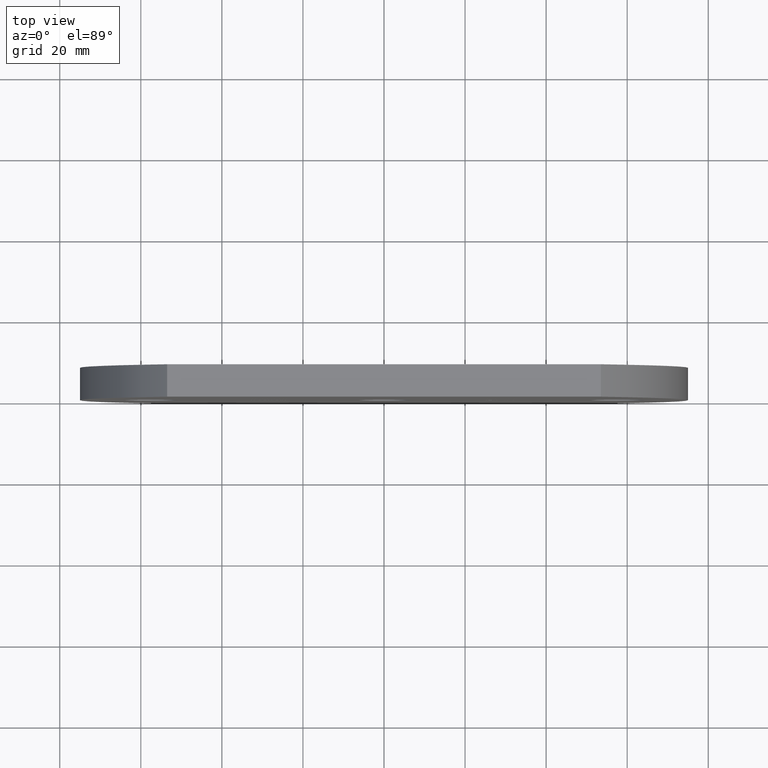
[diagram: clean part render]
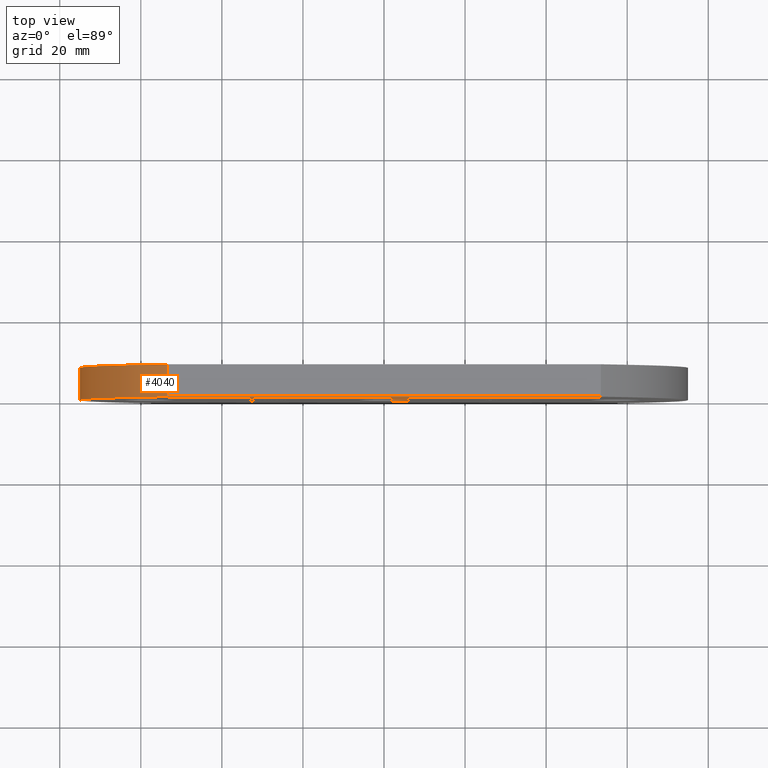
[diagram: same view with one face highlighted and labeled with its STEP entity id]
A machine part, top view. The second image highlights one B-rep face of the part: STEP entity #4040.
In plain terms, the highlighted cylindrical surface (partial cylindrical patch) has radius 68.8895 mm, axis along (-0, -1, -0).
Its self-contained STEP definition (entity closure, byte-faithful):
#381 = DIRECTION ( 'NONE',  ( 0.0000000000000000000, 1.000000000000000000, 0.0000000000000000000 ) ) ;
#814 = ORIENTED_EDGE ( 'NONE', *, *, #9105, .F. ) ;
#830 = AXIS2_PLACEMENT_3D ( 'NONE', #6468, #4645, #7377 ) ;
#1127 = CYLINDRICAL_SURFACE ( 'NONE', #9150, 68.88953488372095500 ) ;
#1288 = DIRECTION ( 'NONE',  ( -0.0000000000000000000, -1.000000000000000000, -0.0000000000000000000 ) ) ;
#1587 = CARTESIAN_POINT ( 'NONE',  ( -53.50000000000003600, 0.0000000000000000000, 49.99999999999998600 ) ) ;
#1641 = ORIENTED_EDGE ( 'NONE', *, *, #7161, .F. ) ;
#1955 = CARTESIAN_POINT ( 'NONE',  ( -53.49999999999998600, 0.0000000000000000000, -50.00000000000003600 ) ) ;
#2040 = CARTESIAN_POINT ( 'NONE',  ( -53.50000000000003600, 8.000000000000000000, 49.99999999999998600 ) ) ;
#3194 = VERTEX_POINT ( 'NONE', #1955 ) ;
#3272 = CARTESIAN_POINT ( 'NONE',  ( -53.49999999999998600, 8.000000000000000000, -50.00000000000003600 ) ) ;
#3611 = EDGE_CURVE ( 'NONE', #3194, #4503, #6650, .T. ) ;
#4040 = ADVANCED_FACE ( 'NONE', ( #4784 ), #1127, .T. ) ;
#4403 = VECTOR ( 'NONE', #1288, 1000.000000000000000 ) ;
#4503 = VERTEX_POINT ( 'NONE', #1587 ) ;
#4559 = VECTOR ( 'NONE', #5674, 1000.000000000000000 ) ;
#4645 = DIRECTION ( 'NONE',  ( 0.0000000000000000000, 1.000000000000000000, 0.0000000000000000000 ) ) ;
#4784 = FACE_OUTER_BOUND ( 'NONE', #10139, .T. ) ;
#5350 = LINE ( 'NONE', #6629, #4559 ) ;
#5674 = DIRECTION ( 'NONE',  ( -0.0000000000000000000, -1.000000000000000000, -0.0000000000000000000 ) ) ;
#5885 = ORIENTED_EDGE ( 'NONE', *, *, #7666, .T. ) ;
#6192 = VERTEX_POINT ( 'NONE', #3272 ) ;
#6331 = CARTESIAN_POINT ( 'NONE',  ( -6.110465116279051800, 8.000000000000000000, 0.0000000000000000000 ) ) ;
#6374 = CARTESIAN_POINT ( 'NONE',  ( -6.110465116279051800, 8.000000000000000000, 0.0000000000000000000 ) ) ;
#6468 = CARTESIAN_POINT ( 'NONE',  ( -6.110465116279051800, 0.0000000000000000000, 0.0000000000000000000 ) ) ;
#6629 = CARTESIAN_POINT ( 'NONE',  ( -53.49999999999998600, 8.000000000000000000, -50.00000000000003600 ) ) ;
#6650 = CIRCLE ( 'NONE', #830, 68.88953488372095500 ) ;
#6854 = ORIENTED_EDGE ( 'NONE', *, *, #3611, .T. ) ;
#6953 = LINE ( 'NONE', #2040, #4403 ) ;
#7161 = EDGE_CURVE ( 'NONE', #6192, #9162, #7354, .T. ) ;
#7354 = CIRCLE ( 'NONE', #9020, 68.88953488372095500 ) ;
#7377 = DIRECTION ( 'NONE',  ( 0.0000000000000000000, 0.0000000000000000000, 1.000000000000000000 ) ) ;
#7396 = CARTESIAN_POINT ( 'NONE',  ( -53.50000000000003600, 8.000000000000000000, 49.99999999999998600 ) ) ;
#7666 = EDGE_CURVE ( 'NONE', #6192, #3194, #5350, .T. ) ;
#8528 = DIRECTION ( 'NONE',  ( 0.0000000000000000000, 0.0000000000000000000, -1.000000000000000000 ) ) ;
#9020 = AXIS2_PLACEMENT_3D ( 'NONE', #6331, #381, #9866 ) ;
#9105 = EDGE_CURVE ( 'NONE', #9162, #4503, #6953, .T. ) ;
#9150 = AXIS2_PLACEMENT_3D ( 'NONE', #6374, #10717, #8528 ) ;
#9162 = VERTEX_POINT ( 'NONE', #7396 ) ;
#9866 = DIRECTION ( 'NONE',  ( 0.0000000000000000000, 0.0000000000000000000, 1.000000000000000000 ) ) ;
#10139 = EDGE_LOOP ( 'NONE', ( #6854, #814, #1641, #5885 ) ) ;
#10717 = DIRECTION ( 'NONE',  ( -0.0000000000000000000, -1.000000000000000000, -0.0000000000000000000 ) ) ;